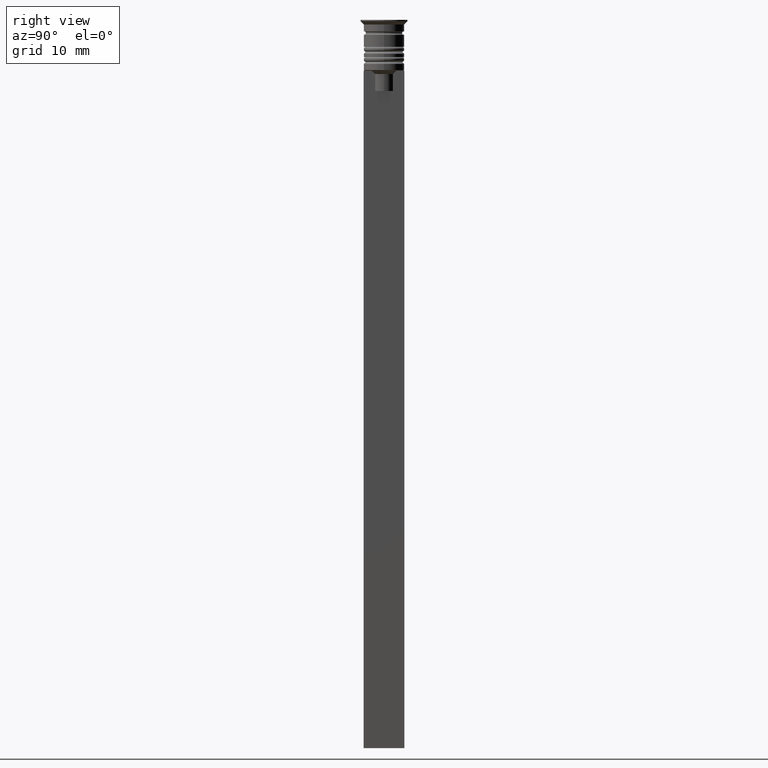
[diagram: clean part render]
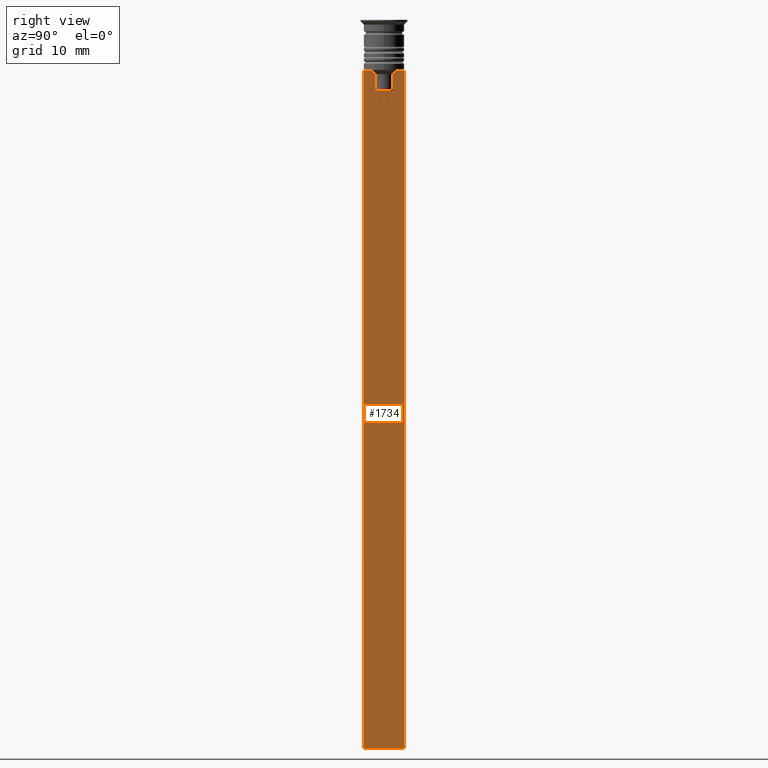
[diagram: same view with one face highlighted and labeled with its STEP entity id]
A machine part, right view. The second image highlights one B-rep face of the part: STEP entity #1734.
In plain terms, the highlighted planar face has unit normal (-1, 0, 0).
Its self-contained STEP definition (entity closure, byte-faithful):
#14 = DIRECTION ( 'NONE',  ( 0.000000000000000000, 1.000000000000000000, 0.000000000000000000 ) ) ;
#20 = CARTESIAN_POINT ( 'NONE',  ( 0.4999999999999998890, 1.307669683062199439, 0.000000000000000000 ) ) ;
#52 = CARTESIAN_POINT ( 'NONE',  ( 0.4999999999999998890, 1.307669683062199439, -8.000000000000000000 ) ) ;
#58 = EDGE_CURVE ( 'NONE', #1440, #716, #2188, .T. ) ;
#61 = ORIENTED_EDGE ( 'NONE', *, *, #58, .T. ) ;
#70 = DIRECTION ( 'NONE',  ( 0.000000000000000000, 0.000000000000000000, -1.000000000000000000 ) ) ;
#105 = CARTESIAN_POINT ( 'NONE',  ( 0.4999999999999998890, -3.000000000000000000, -7.500000000000000000 ) ) ;
#165 = VERTEX_POINT ( 'NONE', #1001 ) ;
#210 = DIRECTION ( 'NONE',  ( 0.000000000000000000, 0.000000000000000000, 1.000000000000000000 ) ) ;
#222 = ORIENTED_EDGE ( 'NONE', *, *, #292, .T. ) ;
#250 = VERTEX_POINT ( 'NONE', #1778 ) ;
#272 = ORIENTED_EDGE ( 'NONE', *, *, #518, .T. ) ;
#282 = EDGE_CURVE ( 'NONE', #481, #1038, #1277, .T. ) ;
#292 = EDGE_CURVE ( 'NONE', #806, #2180, #1797, .T. ) ;
#352 = DIRECTION ( 'NONE',  ( -1.000000000000000000, 0.000000000000000000, 0.000000000000000000 ) ) ;
#371 = ORIENTED_EDGE ( 'NONE', *, *, #1677, .T. ) ;
#405 = CARTESIAN_POINT ( 'NONE',  ( 0.4999999999999998890, -1.307669683062199439, -8.000000000000000000 ) ) ;
#449 = CARTESIAN_POINT ( 'NONE',  ( 0.4999999999999998890, 3.000000000000000000, -107.5000000000000000 ) ) ;
#466 = DIRECTION ( 'NONE',  ( 0.000000000000000000, -1.000000000000000000, 0.000000000000000000 ) ) ;
#481 = VERTEX_POINT ( 'NONE', #1463 ) ;
#502 = EDGE_CURVE ( 'NONE', #1984, #2180, #986, .T. ) ;
#505 = CARTESIAN_POINT ( 'NONE',  ( 0.4999999999999998890, 1.833030277982335754, -7.500000000000000000 ) ) ;
#511 = CARTESIAN_POINT ( 'NONE',  ( 0.4999999999999998890, -3.000000000000000000, -1.417237469701779329 ) ) ;
#518 = EDGE_CURVE ( 'NONE', #716, #1711, #946, .T. ) ;
#538 = CARTESIAN_POINT ( 'NONE',  ( 0.4999999999999998890, -1.484307477388859153, -7.835011508197190722 ) ) ;
#556 = VECTOR ( 'NONE', #740, 1000.000000000000000 ) ;
#559 = VECTOR ( 'NONE', #2087, 1000.000000000000000 ) ;
#636 = LINE ( 'NONE', #1370, #559 ) ;
#662 = ORIENTED_EDGE ( 'NONE', *, *, #502, .F. ) ;
#667 = VECTOR ( 'NONE', #1341, 1000.000000000000000 ) ;
#716 = VERTEX_POINT ( 'NONE', #505 ) ;
#740 = DIRECTION ( 'NONE',  ( 0.000000000000000000, 0.000000000000000000, -1.000000000000000000 ) ) ;
#794 = VECTOR ( 'NONE', #70, 1000.000000000000000 ) ;
#803 = EDGE_CURVE ( 'NONE', #2205, #806, #1571, .T. ) ;
#806 = VERTEX_POINT ( 'NONE', #848 ) ;
#828 = VECTOR ( 'NONE', #1120, 1000.000000000000000 ) ;
#848 = CARTESIAN_POINT ( 'NONE',  ( 0.4999999999999998890, -3.000000000000000000, -107.5000000000000000 ) ) ;
#857 = EDGE_CURVE ( 'NONE', #1711, #2117, #927, .T. ) ;
#878 = LINE ( 'NONE', #2024, #667 ) ;
#909 = VECTOR ( 'NONE', #2261, 1000.000000000000000 ) ;
#910 = AXIS2_PLACEMENT_3D ( 'NONE', #2307, #352, #210 ) ;
#923 = VECTOR ( 'NONE', #14, 1000.000000000000000 ) ;
#927 = LINE ( 'NONE', #20, #556 ) ;
#934 = CARTESIAN_POINT ( 'NONE',  ( 0.4999999999999998890, -3.000000000000000000, -107.5000000000000000 ) ) ;
#946 = B_SPLINE_CURVE_WITH_KNOTS ( 'NONE', 3,
 ( #1336, #2050, #1701, #52 ),
 .UNSPECIFIED., .F., .F.,
 ( 4, 4 ),
 ( 0.003278537493109848298, 0.004003794023484941178 ),
 .UNSPECIFIED. ) ;
#986 = LINE ( 'NONE', #1851, #794 ) ;
#1001 = CARTESIAN_POINT ( 'NONE',  ( 0.4999999999999998890, -2.856571371417139904, -7.500000000000000000 ) ) ;
#1038 = VERTEX_POINT ( 'NONE', #405 ) ;
#1045 = ORIENTED_EDGE ( 'NONE', *, *, #282, .T. ) ;
#1076 = FACE_OUTER_BOUND ( 'NONE', #1685, .T. ) ;
#1077 = DIRECTION ( 'NONE',  ( -0.000000000000000000, -0.000000000000000000, 1.000000000000000000 ) ) ;
#1114 = CARTESIAN_POINT ( 'NONE',  ( 0.4999999999999998890, -1.307669683062199439, 0.000000000000000000 ) ) ;
#1120 = DIRECTION ( 'NONE',  ( 0.000000000000000000, -1.000000000000000000, 0.000000000000000000 ) ) ;
#1186 = ORIENTED_EDGE ( 'NONE', *, *, #1519, .T. ) ;
#1241 = CARTESIAN_POINT ( 'NONE',  ( 0.4999999999999998890, 2.856571371417139904, -7.500000000000000000 ) ) ;
#1251 = VECTOR ( 'NONE', #466, 1000.000000000000000 ) ;
#1259 = CARTESIAN_POINT ( 'NONE',  ( 0.4999999999999998890, -1.307669683062199439, -8.000000000000000000 ) ) ;
#1272 = EDGE_CURVE ( 'NONE', #250, #165, #878, .T. ) ;
#1277 = LINE ( 'NONE', #1114, #1630 ) ;
#1285 = VECTOR ( 'NONE', #1980, 1000.000000000000000 ) ;
#1296 = EDGE_CURVE ( 'NONE', #2117, #481, #2080, .T. ) ;
#1309 = ORIENTED_EDGE ( 'NONE', *, *, #1296, .T. ) ;
#1328 = CARTESIAN_POINT ( 'NONE',  ( 0.4999999999999998890, 1.399999999999997691, -10.49999999999999822 ) ) ;
#1336 = CARTESIAN_POINT ( 'NONE',  ( 0.4999999999999998890, 1.833030277982335754, -7.500000000000000000 ) ) ;
#1341 = DIRECTION ( 'NONE',  ( 0.000000000000000000, -1.000000000000000000, 0.000000000000000000 ) ) ;
#1370 = CARTESIAN_POINT ( 'NONE',  ( 0.4999999999999998890, -3.000000000000000000, -7.500000000000000000 ) ) ;
#1440 = VERTEX_POINT ( 'NONE', #1241 ) ;
#1463 = CARTESIAN_POINT ( 'NONE',  ( 0.4999999999999998890, -1.307669683062199439, -10.49999999999999822 ) ) ;
#1465 = ORIENTED_EDGE ( 'NONE', *, *, #1925, .T. ) ;
#1493 = CARTESIAN_POINT ( 'NONE',  ( 0.4999999999999998890, -3.000000000000000000, -7.500000000000000000 ) ) ;
#1519 = EDGE_CURVE ( 'NONE', #165, #2205, #2068, .T. ) ;
#1571 = LINE ( 'NONE', #511, #1285 ) ;
#1584 = PLANE ( 'NONE',  #910 ) ;
#1630 = VECTOR ( 'NONE', #1077, 1000.000000000000000 ) ;
#1652 = CARTESIAN_POINT ( 'NONE',  ( 0.4999999999999998890, 3.000000000000000000, -7.500000000000000000 ) ) ;
#1677 = EDGE_CURVE ( 'NONE', #1984, #1440, #636, .T. ) ;
#1685 = EDGE_LOOP ( 'NONE', ( #61, #272, #1878, #1309, #1045, #1465, #1853, #1186, #2210, #222, #662, #371 ) ) ;
#1701 = CARTESIAN_POINT ( 'NONE',  ( 0.4999999999999998890, 1.484355510416485835, -7.834966642958598015 ) ) ;
#1711 = VERTEX_POINT ( 'NONE', #1942 ) ;
#1724 = CARTESIAN_POINT ( 'NONE',  ( 0.4999999999999998890, -3.000000000000000000, -7.500000000000000000 ) ) ;
#1734 = ADVANCED_FACE ( 'NONE', ( #1076 ), #1584, .F. ) ;
#1778 = CARTESIAN_POINT ( 'NONE',  ( 0.4999999999999998890, -1.833030277982335754, -7.500000000000000000 ) ) ;
#1793 = CARTESIAN_POINT ( 'NONE',  ( 0.4999999999999998890, -1.833030277982335754, -7.500000000000000000 ) ) ;
#1797 = LINE ( 'NONE', #934, #923 ) ;
#1851 = CARTESIAN_POINT ( 'NONE',  ( 0.4999999999999998890, 3.000000000000000000, -1.417237469701779329 ) ) ;
#1853 = ORIENTED_EDGE ( 'NONE', *, *, #1272, .T. ) ;
#1878 = ORIENTED_EDGE ( 'NONE', *, *, #857, .T. ) ;
#1925 = EDGE_CURVE ( 'NONE', #1038, #250, #2005, .T. ) ;
#1942 = CARTESIAN_POINT ( 'NONE',  ( 0.4999999999999998890, 1.307669683062199439, -8.000000000000000000 ) ) ;
#1980 = DIRECTION ( 'NONE',  ( 0.000000000000000000, 0.000000000000000000, -1.000000000000000000 ) ) ;
#1984 = VERTEX_POINT ( 'NONE', #1652 ) ;
#2005 = B_SPLINE_CURVE_WITH_KNOTS ( 'NONE', 3,
 ( #1259, #538, #2177, #1793 ),
 .UNSPECIFIED., .F., .F.,
 ( 4, 4 ),
 ( 0.007225659348748082224, 0.007950554640278054835 ),
 .UNSPECIFIED. ) ;
#2024 = CARTESIAN_POINT ( 'NONE',  ( 0.4999999999999998890, -3.000000000000000000, -7.500000000000000000 ) ) ;
#2050 = CARTESIAN_POINT ( 'NONE',  ( 0.4999999999999998890, 1.659046061654642967, -7.667851756010362507 ) ) ;
#2068 = LINE ( 'NONE', #105, #909 ) ;
#2080 = LINE ( 'NONE', #1328, #1251 ) ;
#2087 = DIRECTION ( 'NONE',  ( 0.000000000000000000, -1.000000000000000000, 0.000000000000000000 ) ) ;
#2117 = VERTEX_POINT ( 'NONE', #2316 ) ;
#2177 = CARTESIAN_POINT ( 'NONE',  ( 0.4999999999999998890, -1.659011726860414093, -7.667884880598472286 ) ) ;
#2180 = VERTEX_POINT ( 'NONE', #449 ) ;
#2188 = LINE ( 'NONE', #1493, #828 ) ;
#2205 = VERTEX_POINT ( 'NONE', #1724 ) ;
#2210 = ORIENTED_EDGE ( 'NONE', *, *, #803, .T. ) ;
#2261 = DIRECTION ( 'NONE',  ( 0.000000000000000000, -1.000000000000000000, 0.000000000000000000 ) ) ;
#2307 = CARTESIAN_POINT ( 'NONE',  ( 0.4999999999999998890, -3.000000000000000000, -1.417237469701779329 ) ) ;
#2316 = CARTESIAN_POINT ( 'NONE',  ( 0.4999999999999998890, 1.307669683062199439, -10.49999999999999822 ) ) ;